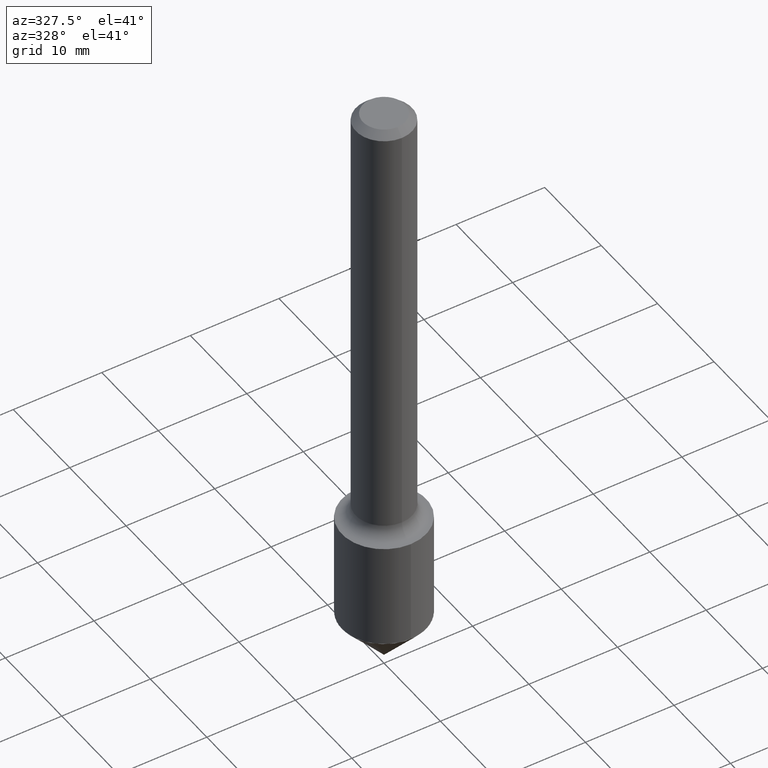
[diagram: clean part render]
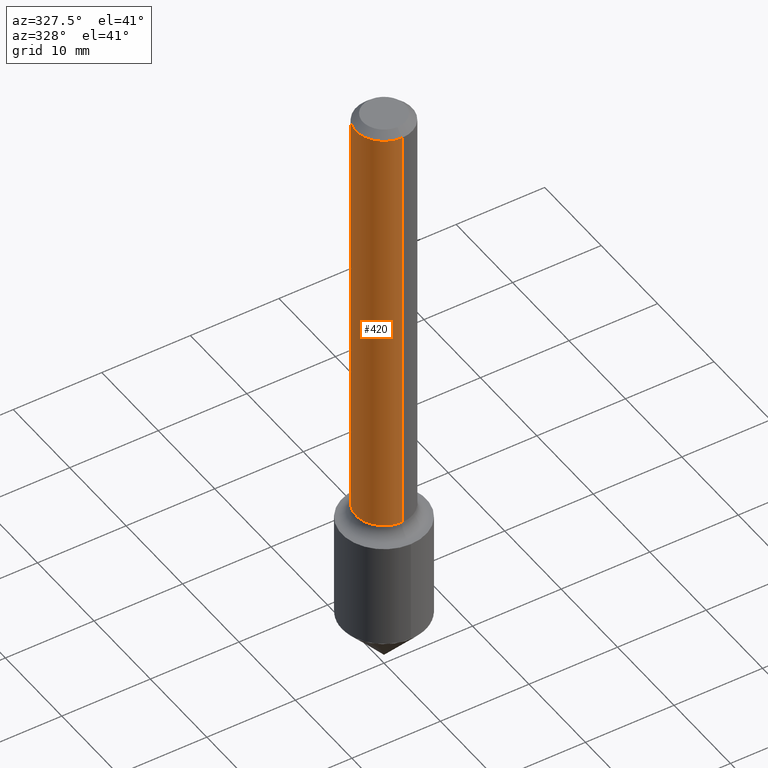
[diagram: same view with one face highlighted and labeled with its STEP entity id]
A machine part, auxiliary view. The second image highlights one B-rep face of the part: STEP entity #420.
In plain terms, the highlighted cylindrical surface (edge-blend (fillet) strip) has radius 3.175 mm, axis along (-0, 0, 1).
Its self-contained STEP definition (entity closure, byte-faithful):
#9 = CARTESIAN_POINT ( 'NONE',  ( 1.110223024625203675E-15, 0.1249999999999934774, -1.940500000000001224 ) ) ;
#31 = FACE_OUTER_BOUND ( 'NONE', #44, .T. ) ;
#44 = EDGE_LOOP ( 'NONE', ( #120, #57, #323, #182 ) ) ;
#54 = CIRCLE ( 'NONE', #136, 0.1250000000000000000 ) ;
#57 = ORIENTED_EDGE ( 'NONE', *, *, #313, .T. ) ;
#64 = CARTESIAN_POINT ( 'NONE',  ( -8.728703347107842263E-16, -0.1250000000000001388, 4.393429743724446949E-16 ) ) ;
#67 = DIRECTION ( 'NONE',  ( -2.429224719885951237E-29, 3.514743794979554009E-15, 1.000000000000000000 ) ) ;
#71 = CYLINDRICAL_SURFACE ( 'NONE', #117, 0.1250000000000001388 ) ;
#88 = LINE ( 'NONE', #275, #290 ) ;
#89 = CARTESIAN_POINT ( 'NONE',  ( -8.575622497214406564E-16, -0.1250000000000001110, -0.03119999999999975918 ) ) ;
#92 = CARTESIAN_POINT ( 'NONE',  ( 7.579181126044216047E-31, -1.096600064033627961E-16, -0.03120000000000019980 ) ) ;
#117 = AXIS2_PLACEMENT_3D ( 'NONE', #378, #295, #456 ) ;
#120 = ORIENTED_EDGE ( 'NONE', *, *, #132, .F. ) ;
#123 = EDGE_CURVE ( 'NONE', #183, #487, #54, .T. ) ;
#128 = DIRECTION ( 'NONE',  ( -6.982962677686265922E-15, -1.000000000000000000, 3.517254291842738968E-15 ) ) ;
#132 = EDGE_CURVE ( 'NONE', #473, #183, #88, .T. ) ;
#136 = AXIS2_PLACEMENT_3D ( 'NONE', #92, #273, #128 ) ;
#182 = ORIENTED_EDGE ( 'NONE', *, *, #123, .F. ) ;
#183 = VERTEX_POINT ( 'NONE', #492 ) ;
#186 = CIRCLE ( 'NONE', #384, 0.1250000000000002776 ) ;
#224 = DIRECTION ( 'NONE',  ( -2.429224719885951237E-29, 3.514743794979554009E-15, 1.000000000000000000 ) ) ;
#226 = CARTESIAN_POINT ( 'NONE',  ( 4.713910568938690605E-29, -6.820360334157826489E-15, -1.940500000000000780 ) ) ;
#247 = DIRECTION ( 'NONE',  ( -2.429224719885951237E-29, 3.514743794979554009E-15, 1.000000000000000000 ) ) ;
#273 = DIRECTION ( 'NONE',  ( -2.429224719885951237E-29, 3.514743794979554009E-15, 1.000000000000000000 ) ) ;
#275 = CARTESIAN_POINT ( 'NONE',  ( 8.881784197001260212E-16, 0.1250000000000001388, -4.393429743724446949E-16 ) ) ;
#290 = VECTOR ( 'NONE', #247, 39.37007874015748143 ) ;
#295 = DIRECTION ( 'NONE',  ( -2.429224719885951237E-29, 3.514743794979554009E-15, 1.000000000000000000 ) ) ;
#313 = EDGE_CURVE ( 'NONE', #473, #395, #186, .T. ) ;
#323 = ORIENTED_EDGE ( 'NONE', *, *, #336, .T. ) ;
#326 = DIRECTION ( 'NONE',  ( -6.982962677686266711E-15, -1.000000000000000000, 4.370956789862811683E-15 ) ) ;
#336 = EDGE_CURVE ( 'NONE', #395, #487, #410, .T. ) ;
#373 = CARTESIAN_POINT ( 'NONE',  ( -8.728703347107380779E-16, -0.1250000000000071054, -1.940500000000000336 ) ) ;
#378 = CARTESIAN_POINT ( 'NONE',  ( 0.000000000000000000, 0.000000000000000000, 0.000000000000000000 ) ) ;
#384 = AXIS2_PLACEMENT_3D ( 'NONE', #226, #67, #326 ) ;
#395 = VERTEX_POINT ( 'NONE', #373 ) ;
#410 = LINE ( 'NONE', #64, #450 ) ;
#420 = ADVANCED_FACE ( 'NONE', ( #31 ), #71, .T. ) ;
#450 = VECTOR ( 'NONE', #224, 39.37007874015748143 ) ;
#456 = DIRECTION ( 'NONE',  ( -6.982962677686265922E-15, -1.000000000000000000, 3.514743794979553615E-15 ) ) ;
#473 = VERTEX_POINT ( 'NONE', #9 ) ;
#487 = VERTEX_POINT ( 'NONE', #89 ) ;
#492 = CARTESIAN_POINT ( 'NONE',  ( 8.728703347107839305E-16, 0.1249999999999999029, -0.03120000000000063695 ) ) ;